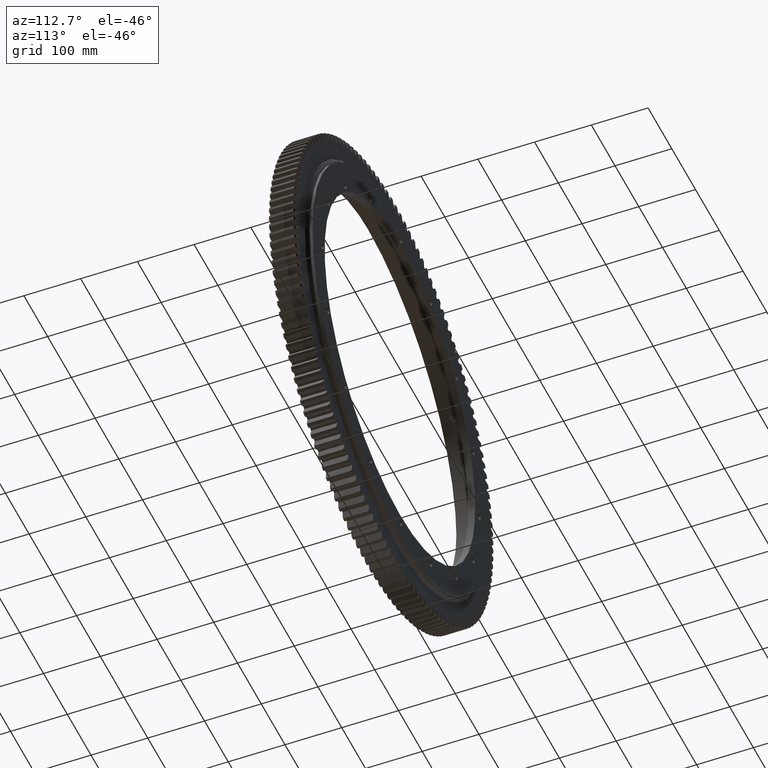
[diagram: clean part render]
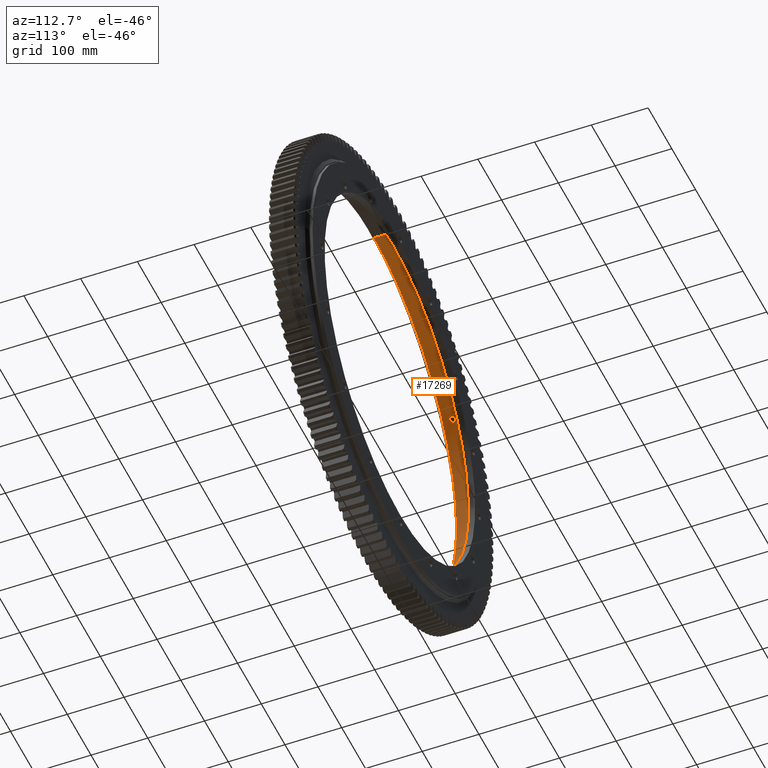
[diagram: same view with one face highlighted and labeled with its STEP entity id]
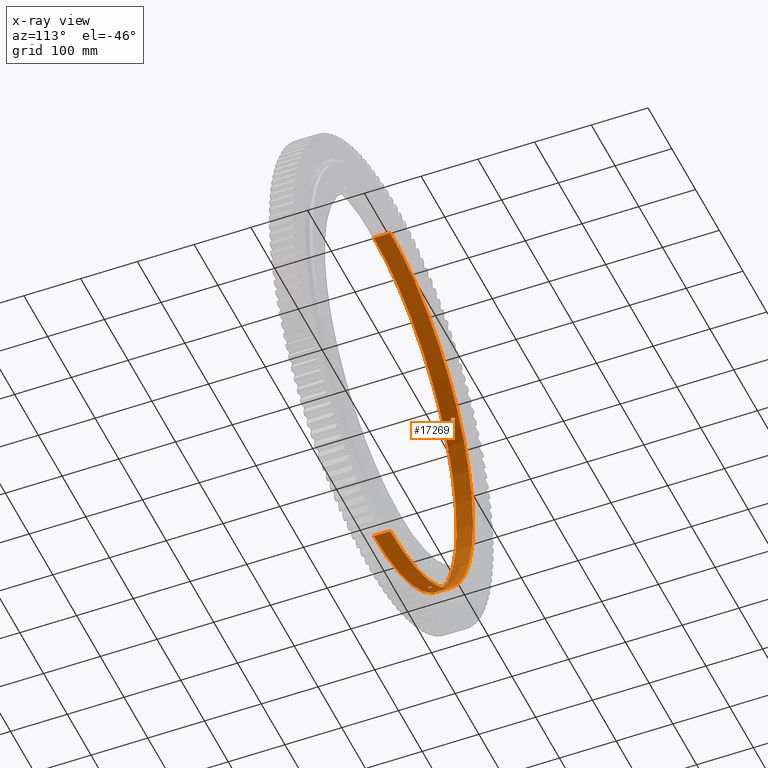
[diagram: x-ray of the same camera — body ghosted, the highlighted face saturated]
A machine part, auxiliary view. The second image highlights one B-rep face of the part: STEP entity #17269.
The next image is the same camera in x-ray: the body ghosted, the highlighted face saturated — about 2% of this face is hidden behind the body in this view.
In plain terms, the highlighted cylindrical surface (partial cylindrical patch) has radius 349 mm, axis along (-0, 1, -0).
Its self-contained STEP definition (entity closure, byte-faithful):
#98 = DIRECTION ( 'NONE',  ( 0.0000000000000000000, 5.467609809669019400E-017, 1.000000000000000000 ) ) ;
#152 = CARTESIAN_POINT ( 'NONE',  ( -289.5563095059689500, -3.322149181866139100, 194.8286136165898500 ) ) ;
#356 = CARTESIAN_POINT ( 'NONE',  ( -196.1991118295504500, -2.139168618260331100, -288.6293901785948600 ) ) ;
#713 = CARTESIAN_POINT ( 'NONE',  ( -289.6800741195089000, -3.389072267020668300, 194.6445597988291400 ) ) ;
#887 = CARTESIAN_POINT ( 'NONE',  ( -196.0792469868242200, -2.315194582371169900, -288.7108502261034500 ) ) ;
#1043 = CARTESIAN_POINT ( 'NONE',  ( -288.2238061002801700, -0.4624049849655387200, 196.7944043845456900 ) ) ;
#1094 = CARTESIAN_POINT ( 'NONE',  ( -288.9935301733759700, -2.785759786337573800, 195.6624022961101200 ) ) ;
#1405 = CARTESIAN_POINT ( 'NONE',  ( -290.3127353074116900, -3.499804542032742400, 193.6996875848314500 ) ) ;
#1800 = CARTESIAN_POINT ( 'NONE',  ( -292.1127977314173400, 5.331706770352477200E-009, 190.9741170984278300 ) ) ;
#1904 = CARTESIAN_POINT ( 'NONE',  ( 4.274017329024262400E-014, 68.08171206226202800, -349.0000000000000000 ) ) ;
#2053 = B_SPLINE_CURVE_WITH_KNOTS ( 'NONE', 3,
 ( #22036, #19366, #19006, #11251, #22072, #35864, #23472, #31538, #11382, #14469, #7903, #28431, #31698, #7855, #30939, #27312, #1405, #9222, #4781, #713, #152, #5264, #27232, #1094, #4496, #20318, #25017, #9391, #24818, #32383, #1043, #10082 ),
 .UNSPECIFIED., .F., .F.,
 ( 4, 2, 2, 2, 2, 2, 2, 2, 2, 2, 2, 2, 2, 2, 2, 4 ),
 ( 0.01094266897717438900, 0.01162643139040126000, 0.01231019380362813000, 0.01299395621685500000, 0.01367771863008187100, 0.01436148104330874100, 0.01504524345653561100, 0.01572900586976248200, 0.01641276828298935200, 0.01709653069621622200, 0.01778029310944308900, 0.01846405552266996300, 0.01914781793589683000, 0.01983158034912370400, 0.02051534276235057000, 0.02188286758880434600 ),
 .UNSPECIFIED. ) ;
#2579 = VERTEX_POINT ( 'NONE', #4220 ) ;
#3161 = CARTESIAN_POINT ( 'NONE',  ( -196.7176812395077300, -0.9217498219750176500, -288.2762294735683800 ) ) ;
#4195 = B_SPLINE_CURVE_WITH_KNOTS ( 'NONE', 3,
 ( #15294, #32121, #15048, #16493, #16612, #17460, #17584, #17770, #16746, #11856, #11947, #12771, #11221, #12510, #11824, #7963, #6768, #6895, #9207, #7837, #7866, #7028, #22781, #20221, #20297, #14118, #14237, #14345, #9650, #7994, #8084, #8113, #8595, #6642 ),
 .UNSPECIFIED., .F., .F.,
 ( 4, 2, 2, 2, 2, 2, 2, 2, 2, 2, 2, 2, 2, 2, 2, 2, 4 ),
 ( 1.225059996181601800E-017, 0.0006839168110734060400, 0.001367833622146799700, 0.002051750433220193400, 0.002735667244293587300, 0.003419584055366981200, 0.004103500866440374700, 0.004787417677513768600, 0.005471334488587162500, 0.006155251299660556400, 0.006839168110733950300, 0.007523084921807344200, 0.008207001732880737200, 0.008890918543954131100, 0.009574835355027525000, 0.01025875216610091900, 0.01094266897717431300 ),
 .UNSPECIFIED. ) ;
#4220 = CARTESIAN_POINT ( 'NONE',  ( 0.0000000000000000000, 10.99999999999998000, 349.0000000000000000 ) ) ;
#4496 = CARTESIAN_POINT ( 'NONE',  ( -288.8923889624675200, -2.638067519180626400, 195.8116792654562900 ) ) ;
#4747 = CARTESIAN_POINT ( 'NONE',  ( -292.1127977314174600, 0.2284306411107477600, 190.9741170984279400 ) ) ;
#4781 = CARTESIAN_POINT ( 'NONE',  ( -289.9292594096423800, -3.477621259745275100, 194.2731956275502500 ) ) ;
#5229 = LINE ( 'NONE', #1904, #34277 ) ;
#5264 = CARTESIAN_POINT ( 'NONE',  ( -289.3190968733188700, -3.146595342140453800, 195.1806989507057300 ) ) ;
#5949 = CARTESIAN_POINT ( 'NONE',  ( -195.6624022961131300, -2.785759786337574300, -288.9935301733739300 ) ) ;
#6642 = CARTESIAN_POINT ( 'NONE',  ( -190.9741170984309000, 5.331706770352476400E-009, -292.1127977314153600 ) ) ;
#6768 = CARTESIAN_POINT ( 'NONE',  ( -194.0848538298395700, 3.499918871974300000, -290.0553768292947400 ) ) ;
#6774 = VERTEX_POINT ( 'NONE', #24861 ) ;
#6895 = CARTESIAN_POINT ( 'NONE',  ( -193.7052317683422300, 3.500080698988247800, -290.3090341331235900 ) ) ;
#7028 = CARTESIAN_POINT ( 'NONE',  ( -192.6035448528592400, 3.146549724062374800, -291.0410957318982200 ) ) ;
#7067 = CARTESIAN_POINT ( 'NONE',  ( -288.2238061002801700, 5.331719207649136800E-009, 196.7944043845456900 ) ) ;
#7168 = VERTEX_POINT ( 'NONE', #9854 ) ;
#7267 = CARTESIAN_POINT ( 'NONE',  ( -191.3600936916692200, -1.751989161990429500, -291.8601221922731400 ) ) ;
#7475 = CARTESIAN_POINT ( 'NONE',  ( -193.1382140114340000, -3.387788637487856300, -290.6865671553944700 ) ) ;
#7767 = ORIENTED_EDGE ( 'NONE', *, *, #34843, .T. ) ;
#7837 = CARTESIAN_POINT ( 'NONE',  ( -193.1385682553674600, 3.387954415595118000, -290.6863323813768100 ) ) ;
#7854 = CARTESIAN_POINT ( 'NONE',  ( -288.2238061002801700, 5.331719207649136800E-009, 196.7944043845456900 ) ) ;
#7855 = CARTESIAN_POINT ( 'NONE',  ( -290.8096745681476100, -3.320201052507542700, 192.9527868297722600 ) ) ;
#7866 = CARTESIAN_POINT ( 'NONE',  ( -192.9567945463527700, 3.321848484445420400, -290.8070156187912400 ) ) ;
#7903 = CARTESIAN_POINT ( 'NONE',  ( -291.3639525657482100, -2.782415985883480900, 192.1147661317279800 ) ) ;
#7963 = CARTESIAN_POINT ( 'NONE',  ( -194.2735710104263100, 3.477719799857432700, -289.9290096682636900 ) ) ;
#7994 = CARTESIAN_POINT ( 'NONE',  ( -191.1235089615280700, 1.127093699375245800, -292.0150887194326400 ) ) ;
#8084 = CARTESIAN_POINT ( 'NONE',  ( -191.0681452489849100, 0.9088830374809879800, -292.0513069168616800 ) ) ;
#8113 = CARTESIAN_POINT ( 'NONE',  ( -190.9932774926996900, 0.4604150181867150400, -292.1002737987946000 ) ) ;
#8288 = CARTESIAN_POINT ( 'NONE',  ( -195.3473859882377900, -3.039194630945099900, -289.2065610284753900 ) ) ;
#8595 = CARTESIAN_POINT ( 'NONE',  ( -190.9741170984309800, 0.2284306411107467900, -292.1127977314154700 ) ) ;
#8922 = EDGE_LOOP ( 'NONE', ( #10027, #31279 ) ) ;
#9207 = CARTESIAN_POINT ( 'NONE',  ( -193.5123147004298700, 3.477323672872842100, -290.4376601619550200 ) ) ;
#9222 = CARTESIAN_POINT ( 'NONE',  ( -290.0563270656824100, -3.500192968238608600, 194.0834366485158000 ) ) ;
#9287 = CARTESIAN_POINT ( 'NONE',  ( -291.4604115125646300, 2.638805261177855000, 191.9683703740482500 ) ) ;
#9367 = CARTESIAN_POINT ( 'NONE',  ( -288.2867339371933900, 0.9060093182990162100, 196.7022140513811300 ) ) ;
#9391 = CARTESIAN_POINT ( 'NONE',  ( -288.4855119646309700, -1.757443291752252900, 196.4106049684609700 ) ) ;
#9650 = CARTESIAN_POINT ( 'NONE',  ( -191.2704959865508000, 1.551320424776422300, -291.9188330386449500 ) ) ;
#9773 = CARTESIAN_POINT ( 'NONE',  ( -291.8587964331419500, 1.755853929030855900, 191.3621148755079600 ) ) ;
#9854 = CARTESIAN_POINT ( 'NONE',  ( -196.7944043845487000, 5.331717523515884000E-009, -288.2238061002780700 ) ) ;
#9924 = CARTESIAN_POINT ( 'NONE',  ( -288.3246714591786600, 1.128301720496236900, 196.6466159067857100 ) ) ;
#10027 = ORIENTED_EDGE ( 'NONE', *, *, #11982, .T. ) ;
#10082 = CARTESIAN_POINT ( 'NONE',  ( -288.2238061002801700, 5.331719207649136800E-009, 196.7944043845456900 ) ) ;
#10235 = CARTESIAN_POINT ( 'NONE',  ( -288.9904146014263200, 2.781636197063353000, 195.6670050820345100 ) ) ;
#10722 = B_SPLINE_CURVE_WITH_KNOTS ( 'NONE', 3,
 ( #21943, #18439, #32238, #11348, #22628, #27643, #7267, #26558, #19287, #21427, #33019, #25023, #25065, #24134, #7475, #28404, #10817, #16188, #28604, #17407, #12853, #29477, #8288, #5949, #24858, #887, #356, #28486, #30448, #3161, #32975, #35455 ),
 .UNSPECIFIED., .F., .F.,
 ( 4, 2, 2, 2, 2, 2, 2, 2, 2, 2, 2, 2, 2, 2, 2, 4 ),
 ( 0.01094266897717431300, 0.01162643139040118100, 0.01231019380362805200, 0.01299395621685492000, 0.01367771863008179100, 0.01436148104330865900, 0.01504524345653552800, 0.01572900586976239800, 0.01641276828298926500, 0.01709653069621613500, 0.01778029310944300600, 0.01846405552266987300, 0.01914781793589674300, 0.01983158034912361300, 0.02051534276235048400, 0.02188286758880418600 ),
 .UNSPECIFIED. ) ;
#10812 = ORIENTED_EDGE ( 'NONE', *, *, #20363, .T. ) ;
#10817 = CARTESIAN_POINT ( 'NONE',  ( -193.6996875848344100, -3.499804542032739700, -290.3127353074095800 ) ) ;
#11221 = CARTESIAN_POINT ( 'NONE',  ( -195.1811435306154000, 3.146205037255353200, -289.3187957385774800 ) ) ;
#11251 = CARTESIAN_POINT ( 'NONE',  ( -292.0517134927320600, -0.9064350857330598600, 191.0675237895492000 ) ) ;
#11348 = CARTESIAN_POINT ( 'NONE',  ( -191.0675237895523300, -0.9064350857330598600, -292.0517134927300700 ) ) ;
#11382 = CARTESIAN_POINT ( 'NONE',  ( -291.6401437933174600, -2.311675696848268600, 191.6952073544641500 ) ) ;
#11624 = FACE_OUTER_BOUND ( 'NONE', #22079, .T. ) ;
#11720 = CARTESIAN_POINT ( 'NONE',  ( 4.274017329024262400E-014, -18.00000000000003900, -349.0000000000000000 ) ) ;
#11824 = CARTESIAN_POINT ( 'NONE',  ( -194.6487724665530500, 3.387877448780593600, -289.6772452534498800 ) ) ;
#11856 = CARTESIAN_POINT ( 'NONE',  ( -195.8129093256652300, 2.636754636346891900, -288.8915551277642600 ) ) ;
#11947 = CARTESIAN_POINT ( 'NONE',  ( -195.6670050820375800, 2.781636197063346300, -288.9904146014242800 ) ) ;
#11956 = EDGE_CURVE ( 'NONE', #35835, #6774, #30752, .T. ) ;
#11982 = EDGE_CURVE ( 'NONE', #7168, #18949, #4195, .T. ) ;
#12106 = EDGE_CURVE ( 'NONE', #28030, #25811, #2053, .T. ) ;
#12346 = CARTESIAN_POINT ( 'NONE',  ( -291.7197237852068400, 2.134966112816766500, 191.5740557061731100 ) ) ;
#12510 = CARTESIAN_POINT ( 'NONE',  ( -194.8318089683817800, 3.320722847991255800, -289.5541582703440900 ) ) ;
#12601 = LINE ( 'NONE', #29427, #27658 ) ;
#12771 = CARTESIAN_POINT ( 'NONE',  ( -195.3500157604559600, 3.037490067974989200, -289.2047854923338300 ) ) ;
#12853 = CARTESIAN_POINT ( 'NONE',  ( -194.8286136165928300, -3.322149181866135100, -289.5563095059667400 ) ) ;
#12982 = B_SPLINE_CURVE_WITH_KNOTS ( 'NONE', 3,
 ( #7067, #30145, #25834, #9367, #9924, #18832, #25959, #35736, #16057, #14670, #10235, #18311, #21906, #21431, #14426, #31467, #36091, #25829, #29711, #18965, #32463, #28154, #33100, #17934, #9287, #17985, #12346, #9773, #26767, #30169, #16014, #31592, #4747, #1800 ),
 .UNSPECIFIED., .F., .F.,
 ( 4, 2, 2, 2, 2, 2, 2, 2, 2, 2, 2, 2, 2, 2, 2, 2, 4 ),
 ( 1.388726330551850700E-017, 0.0006839168110734123300, 0.001367833622146810800, 0.002051750433220209500, 0.002735667244293607700, 0.003419584055367005900, 0.004103500866440405000, 0.004787417677513803300, 0.005471334488587201500, 0.006155251299660599800, 0.006839168110733998000, 0.007523084921807397100, 0.008207001732880796200, 0.008890918543954193600, 0.009574835355027592700, 0.01025875216610099000, 0.01094266897717438900 ),
 .UNSPECIFIED. ) ;
#14118 = CARTESIAN_POINT ( 'NONE',  ( -191.6953474352274000, 2.312151186242875400, -291.6400529331125400 ) ) ;
#14120 = AXIS2_PLACEMENT_3D ( 'NONE', #31879, #15596, #15710 ) ;
#14237 = CARTESIAN_POINT ( 'NONE',  ( -191.5740557061761800, 2.134966112816779400, -291.7197237852047900 ) ) ;
#14345 = CARTESIAN_POINT ( 'NONE',  ( -191.3621148755110000, 1.755853929030868800, -291.8587964331398400 ) ) ;
#14356 = EDGE_CURVE ( 'NONE', #6774, #2579, #12601, .T. ) ;
#14426 = CARTESIAN_POINT ( 'NONE',  ( -289.6772452534519300, 3.387877448780588700, 194.6487724665499900 ) ) ;
#14469 = CARTESIAN_POINT ( 'NONE',  ( -291.4629039969971700, -2.634578772632828200, 191.9645842026470700 ) ) ;
#14670 = CARTESIAN_POINT ( 'NONE',  ( -288.8915551277662500, 2.636754636346896300, 195.8129093256621600 ) ) ;
#15048 = CARTESIAN_POINT ( 'NONE',  ( -196.7756625060683600, 0.4586442666857740200, -288.2366052780031400 ) ) ;
#15199 = EDGE_LOOP ( 'NONE', ( #36096, #23849 ) ) ;
#15294 = CARTESIAN_POINT ( 'NONE',  ( -196.7944043845487000, 5.331717523515884000E-009, -288.2238061002780700 ) ) ;
#15596 = DIRECTION ( 'NONE',  ( -0.0000000000000000000, 1.000000000000000000, -2.727064569436389700E-017 ) ) ;
#15710 = DIRECTION ( 'NONE',  ( 0.0000000000000000000, 2.982332623455829000E-017, 1.000000000000000000 ) ) ;
#16014 = CARTESIAN_POINT ( 'NONE',  ( -292.0513069168636700, 0.9088830374809852000, 191.0681452489818400 ) ) ;
#16057 = CARTESIAN_POINT ( 'NONE',  ( -288.7102046805634900, 2.313874964475429100, 196.0801973581890000 ) ) ;
#16188 = CARTESIAN_POINT ( 'NONE',  ( -194.0834366485188100, -3.500192968238608100, -290.0563270656803600 ) ) ;
#16493 = CARTESIAN_POINT ( 'NONE',  ( -196.7022140513841500, 0.9060093182990084400, -288.2867339371912300 ) ) ;
#16612 = CARTESIAN_POINT ( 'NONE',  ( -196.6466159067887200, 1.128301720496250000, -288.3246714591765600 ) ) ;
#16746 = CARTESIAN_POINT ( 'NONE',  ( -196.0801973581920100, 2.313874964475423700, -288.7102046805615000 ) ) ;
#17149 = DIRECTION ( 'NONE',  ( -0.0000000000000000000, 1.000000000000000000, -5.298555410421252300E-017 ) ) ;
#17269 = ADVANCED_FACE ( 'NONE', ( #26692, #25816, #11624 ), #32311, .F. ) ;
#17407 = CARTESIAN_POINT ( 'NONE',  ( -194.6445597988321500, -3.389072267020672800, -289.6800741195068600 ) ) ;
#17460 = CARTESIAN_POINT ( 'NONE',  ( -196.5014183622715500, 1.552197993532597100, -288.4236472643144700 ) ) ;
#17489 = ORIENTED_EDGE ( 'NONE', *, *, #14356, .F. ) ;
#17584 = CARTESIAN_POINT ( 'NONE',  ( -196.4125485261679400, 1.753245099819019900, -288.4841883310903100 ) ) ;
#17770 = CARTESIAN_POINT ( 'NONE',  ( -196.2024966381630400, 2.133732359513469800, -288.6270889028676800 ) ) ;
#17934 = CARTESIAN_POINT ( 'NONE',  ( -291.3631426973153700, 2.783475729539294000, 192.1159937339869800 ) ) ;
#17985 = CARTESIAN_POINT ( 'NONE',  ( -291.6400529331145900, 2.312151186242871400, 191.6953474352242200 ) ) ;
#18311 = CARTESIAN_POINT ( 'NONE',  ( -289.2047854923358200, 3.037490067974995400, 195.3500157604529500 ) ) ;
#18439 = CARTESIAN_POINT ( 'NONE',  ( -190.9741170984310100, -0.2283790610200685200, -292.1127977314154700 ) ) ;
#18812 = ORIENTED_EDGE ( 'NONE', *, *, #11956, .F. ) ;
#18832 = CARTESIAN_POINT ( 'NONE',  ( -288.4236472643165700, 1.552197993532588000, 196.5014183622686200 ) ) ;
#18949 = VERTEX_POINT ( 'NONE', #31147 ) ;
#18965 = CARTESIAN_POINT ( 'NONE',  ( -290.6863323813788000, 3.387954415595121600, 193.1385682553644500 ) ) ;
#19006 = CARTESIAN_POINT ( 'NONE',  ( -292.1006848246940400, -0.4553534435537198700, 190.9926488796247400 ) ) ;
#19287 = CARTESIAN_POINT ( 'NONE',  ( -191.6952073544672400, -2.311675696848255200, -291.6401437933155300 ) ) ;
#19366 = CARTESIAN_POINT ( 'NONE',  ( -292.1127977314174000, -0.2283790610200681400, 190.9741170984279100 ) ) ;
#19886 = EDGE_CURVE ( 'NONE', #18949, #7168, #10722, .T. ) ;
#20221 = CARTESIAN_POINT ( 'NONE',  ( -192.1159937339901100, 2.783475729539316200, -291.3631426973134400 ) ) ;
#20297 = CARTESIAN_POINT ( 'NONE',  ( -191.9683703740512900, 2.638805261177857600, -291.4604115125626400 ) ) ;
#20318 = CARTESIAN_POINT ( 'NONE',  ( -288.7108502261055500, -2.315194582371162800, 196.0792469868212000 ) ) ;
#20363 = EDGE_CURVE ( 'NONE', #35835, #24706, #5229, .T. ) ;
#21133 = AXIS2_PLACEMENT_3D ( 'NONE', #33858, #17149, #98 ) ;
#21427 = CARTESIAN_POINT ( 'NONE',  ( -191.9645842026501200, -2.634578772632817100, -291.4629039969950100 ) ) ;
#21431 = CARTESIAN_POINT ( 'NONE',  ( -289.5541582703459700, 3.320722847991258900, 194.8318089683787100 ) ) ;
#21752 = CIRCLE ( 'NONE', #21133, 349.0000000000000000 ) ;
#21906 = CARTESIAN_POINT ( 'NONE',  ( -289.3187957385795200, 3.146205037255359400, 195.1811435306123900 ) ) ;
#21943 = CARTESIAN_POINT ( 'NONE',  ( -190.9741170984309000, 5.331706770352476400E-009, -292.1127977314153600 ) ) ;
#22036 = CARTESIAN_POINT ( 'NONE',  ( -292.1127977314173400, 5.331706770352477200E-009, 190.9741170984278300 ) ) ;
#22072 = CARTESIAN_POINT ( 'NONE',  ( -292.0149152328625600, -1.127689976068462200, 191.1237737117205600 ) ) ;
#22079 = EDGE_LOOP ( 'NONE', ( #18812, #10812, #7767, #17489 ) ) ;
#22261 = CARTESIAN_POINT ( 'NONE',  ( 4.274017329024262400E-014, 10.99999999999994100, -349.0000000000000000 ) ) ;
#22569 = EDGE_CURVE ( 'NONE', #25811, #28030, #12982, .T. ) ;
#22628 = CARTESIAN_POINT ( 'NONE',  ( -191.1237737117236900, -1.127689976068455600, -292.0149152328605200 ) ) ;
#22781 = CARTESIAN_POINT ( 'NONE',  ( -192.4325557315149500, 3.036911061307417300, -291.1541644309607500 ) ) ;
#23472 = CARTESIAN_POINT ( 'NONE',  ( -291.8601221922751800, -1.751989161990420200, 191.3600936916661200 ) ) ;
#23849 = ORIENTED_EDGE ( 'NONE', *, *, #12106, .T. ) ;
#24134 = CARTESIAN_POINT ( 'NONE',  ( -192.9527868297752800, -3.320201052507537400, -290.8096745681455100 ) ) ;
#24706 = VERTEX_POINT ( 'NONE', #22261 ) ;
#24818 = CARTESIAN_POINT ( 'NONE',  ( -288.4240014841570900, -1.553252564293384300, 196.5008982569887900 ) ) ;
#24858 = CARTESIAN_POINT ( 'NONE',  ( -195.8116792654593300, -2.638067519180633500, -288.8923889624653000 ) ) ;
#24861 = CARTESIAN_POINT ( 'NONE',  ( 0.0000000000000000000, -18.00000000000001800, 349.0000000000000000 ) ) ;
#25017 = CARTESIAN_POINT ( 'NONE',  ( -288.6293901785970200, -2.139168618260311100, 196.1991118295474300 ) ) ;
#25023 = CARTESIAN_POINT ( 'NONE',  ( -192.4324255958428300, -3.036883468590630300, -291.1542508703667000 ) ) ;
#25065 = CARTESIAN_POINT ( 'NONE',  ( -192.6000337344926500, -3.144458589686073100, -291.0434190516593800 ) ) ;
#25351 = CARTESIAN_POINT ( 'NONE',  ( 0.0000000000000000000, 68.08171206226204200, -7.214694475964806500E-015 ) ) ;
#25811 = VERTEX_POINT ( 'NONE', #7854 ) ;
#25816 = FACE_BOUND ( 'NONE', #8922, .T. ) ;
#25829 = CARTESIAN_POINT ( 'NONE',  ( -290.3090341331258100, 3.500080698988248300, 193.7052317683392200 ) ) ;
#25834 = CARTESIAN_POINT ( 'NONE',  ( -288.2366052780052400, 0.4586442666857785100, 196.7756625060652900 ) ) ;
#25959 = CARTESIAN_POINT ( 'NONE',  ( -288.4841883310924100, 1.753245099819029900, 196.4125485261648400 ) ) ;
#26356 = DIRECTION ( 'NONE',  ( 0.0000000000000000000, 3.976443497941105200E-017, 1.000000000000000000 ) ) ;
#26558 = CARTESIAN_POINT ( 'NONE',  ( -191.5741272072972700, -2.135341075809589700, -291.7196773763047900 ) ) ;
#26692 = FACE_BOUND ( 'NONE', #15199, .T. ) ;
#26767 = CARTESIAN_POINT ( 'NONE',  ( -291.9188330386469400, 1.551320424776416100, 191.2704959865477000 ) ) ;
#27081 = CARTESIAN_POINT ( 'NONE',  ( -292.1127977314173400, 5.331706770352477200E-009, 190.9741170984278300 ) ) ;
#27232 = CARTESIAN_POINT ( 'NONE',  ( -289.2065610284775500, -3.039194630945095900, 195.3473859882347200 ) ) ;
#27312 = CARTESIAN_POINT ( 'NONE',  ( -290.4387489931110600, -3.477013311238417600, 193.5106796004573700 ) ) ;
#27488 = DIRECTION ( 'NONE',  ( -0.0000000000000000000, 1.000000000000000000, -5.298555410421252300E-017 ) ) ;
#27643 = CARTESIAN_POINT ( 'NONE',  ( -191.2696009442996700, -1.548904285265978000, -291.9194192767469100 ) ) ;
#27658 = VECTOR ( 'NONE', #36288, 1000.000000000000000 ) ;
#28030 = VERTEX_POINT ( 'NONE', #27081 ) ;
#28154 = CARTESIAN_POINT ( 'NONE',  ( -291.0410957319002700, 3.146549724062359200, 192.6035448528561500 ) ) ;
#28404 = CARTESIAN_POINT ( 'NONE',  ( -193.5106796004603800, -3.477013311238418500, -290.4387489931089000 ) ) ;
#28431 = CARTESIAN_POINT ( 'NONE',  ( -291.1542508703687400, -3.036883468590626700, 192.4324255958398500 ) ) ;
#28486 = CARTESIAN_POINT ( 'NONE',  ( -196.4106049684639900, -1.757443291752277300, -288.4855119646289800 ) ) ;
#28604 = CARTESIAN_POINT ( 'NONE',  ( -194.2731956275532900, -3.477621259745276500, -289.9292594096403400 ) ) ;
#29378 = AXIS2_PLACEMENT_3D ( 'NONE', #25351, #27488, #26356 ) ;
#29427 = CARTESIAN_POINT ( 'NONE',  ( 0.0000000000000000000, 68.08171206226205600, 349.0000000000000000 ) ) ;
#29477 = CARTESIAN_POINT ( 'NONE',  ( -195.1806989507088000, -3.146595342140449800, -289.3190968733169400 ) ) ;
#29711 = CARTESIAN_POINT ( 'NONE',  ( -290.4376601619571300, 3.477323672872843800, 193.5123147004268300 ) ) ;
#30145 = CARTESIAN_POINT ( 'NONE',  ( -288.2238061002801100, 0.2312547074555474900, 196.7944043845456300 ) ) ;
#30169 = CARTESIAN_POINT ( 'NONE',  ( -292.0150887194345700, 1.127093699375240700, 191.1235089615250000 ) ) ;
#30448 = CARTESIAN_POINT ( 'NONE',  ( -196.5008982569918300, -1.553252564293393400, -288.4240014841551000 ) ) ;
#30752 = CIRCLE ( 'NONE', #14120, 349.0000000000000000 ) ;
#30939 = CARTESIAN_POINT ( 'NONE',  ( -290.6865671553965200, -3.387788637487854500, 193.1382140114309000 ) ) ;
#31147 = CARTESIAN_POINT ( 'NONE',  ( -190.9741170984309000, 5.331706770352476400E-009, -292.1127977314153600 ) ) ;
#31279 = ORIENTED_EDGE ( 'NONE', *, *, #19886, .T. ) ;
#31467 = CARTESIAN_POINT ( 'NONE',  ( -289.9290096682656200, 3.477719799857429600, 194.2735710104233000 ) ) ;
#31538 = CARTESIAN_POINT ( 'NONE',  ( -291.7196773763067200, -2.135341075809581200, 191.5741272072941700 ) ) ;
#31592 = CARTESIAN_POINT ( 'NONE',  ( -292.1002737987965900, 0.4604150181867119900, 190.9932774926965600 ) ) ;
#31698 = CARTESIAN_POINT ( 'NONE',  ( -291.0434190516613200, -3.144458589686080200, 192.6000337344895600 ) ) ;
#31879 = CARTESIAN_POINT ( 'NONE',  ( 0.0000000000000000000, -18.00000000000002800, -2.653607264106575800E-015 ) ) ;
#32031 = DIRECTION ( 'NONE',  ( -0.0000000000000000000, 1.000000000000000000, -5.298555410421252300E-017 ) ) ;
#32121 = CARTESIAN_POINT ( 'NONE',  ( -196.7944043845486700, 0.2312547074555465800, -288.2238061002780100 ) ) ;
#32238 = CARTESIAN_POINT ( 'NONE',  ( -190.9926488796278100, -0.4553534435537200900, -292.1006848246920000 ) ) ;
#32311 = CYLINDRICAL_SURFACE ( 'NONE', #29378, 349.0000000000000000 ) ;
#32383 = CARTESIAN_POINT ( 'NONE',  ( -288.2762294735704200, -0.9217498219750065400, 196.7176812395047100 ) ) ;
#32463 = CARTESIAN_POINT ( 'NONE',  ( -290.8070156187932900, 3.321848484445409300, 192.9567945463496400 ) ) ;
#32975 = CARTESIAN_POINT ( 'NONE',  ( -196.7944043845486100, -0.4624049849655378400, -288.2238061002780100 ) ) ;
#33019 = CARTESIAN_POINT ( 'NONE',  ( -192.1147661317309900, -2.782415985883486300, -291.3639525657459300 ) ) ;
#33100 = CARTESIAN_POINT ( 'NONE',  ( -291.1541644309626800, 3.036911061307397300, 192.4325557315118500 ) ) ;
#33858 = CARTESIAN_POINT ( 'NONE',  ( 0.0000000000000000000, 10.99999999999996100, -4.190188333128738200E-015 ) ) ;
#34277 = VECTOR ( 'NONE', #32031, 1000.000000000000000 ) ;
#34843 = EDGE_CURVE ( 'NONE', #24706, #2579, #21752, .T. ) ;
#35455 = CARTESIAN_POINT ( 'NONE',  ( -196.7944043845487000, 5.331717523515884000E-009, -288.2238061002780700 ) ) ;
#35736 = CARTESIAN_POINT ( 'NONE',  ( -288.6270889028696200, 2.133732359513480900, 196.2024966381600000 ) ) ;
#35835 = VERTEX_POINT ( 'NONE', #11720 ) ;
#35864 = CARTESIAN_POINT ( 'NONE',  ( -291.9194192767489500, -1.548904285265984700, 191.2696009442966800 ) ) ;
#36091 = CARTESIAN_POINT ( 'NONE',  ( -290.0553768292967900, 3.499918871974299500, 194.0848538298365300 ) ) ;
#36096 = ORIENTED_EDGE ( 'NONE', *, *, #22569, .T. ) ;
#36288 = DIRECTION ( 'NONE',  ( -0.0000000000000000000, 1.000000000000000000, -5.298555410421252300E-017 ) ) ;